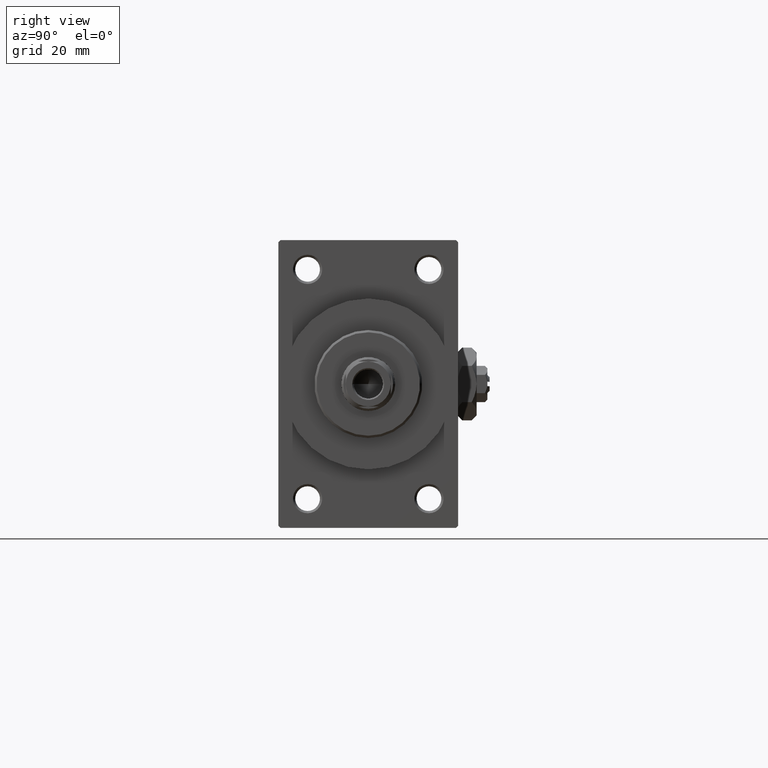
[diagram: clean part render]
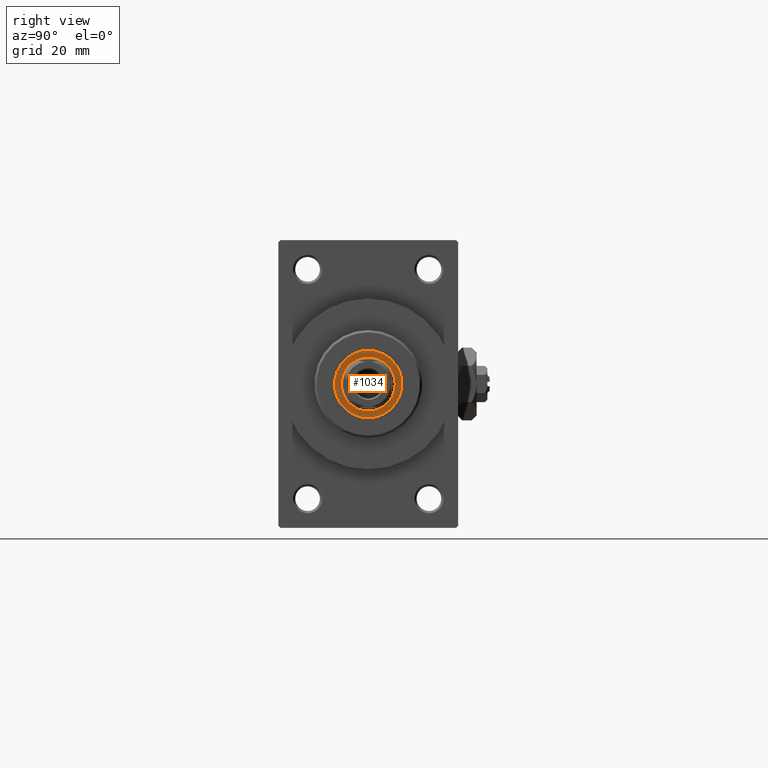
[diagram: same view with one face highlighted and labeled with its STEP entity id]
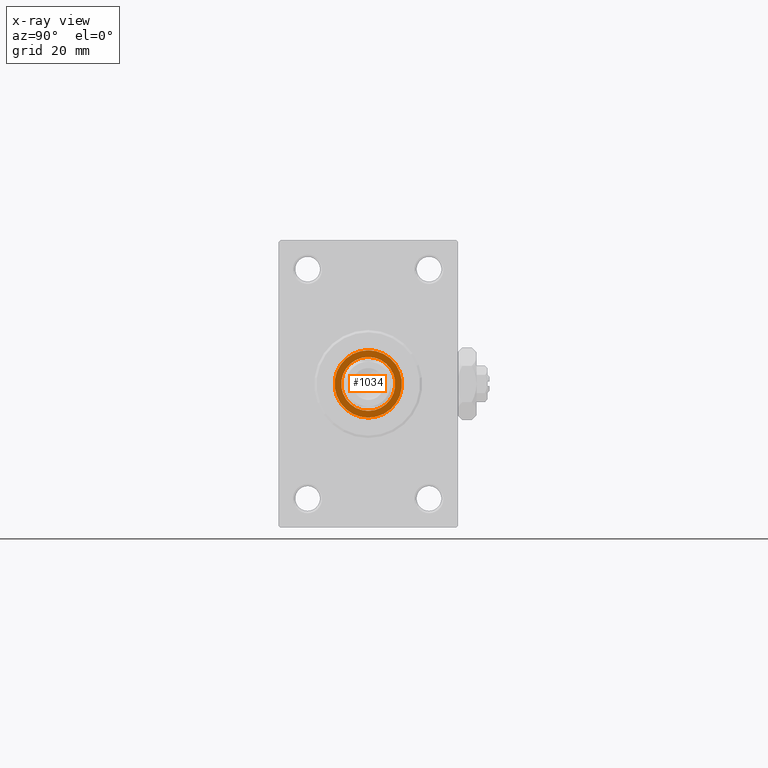
[diagram: x-ray of the same camera — body ghosted, the highlighted face saturated]
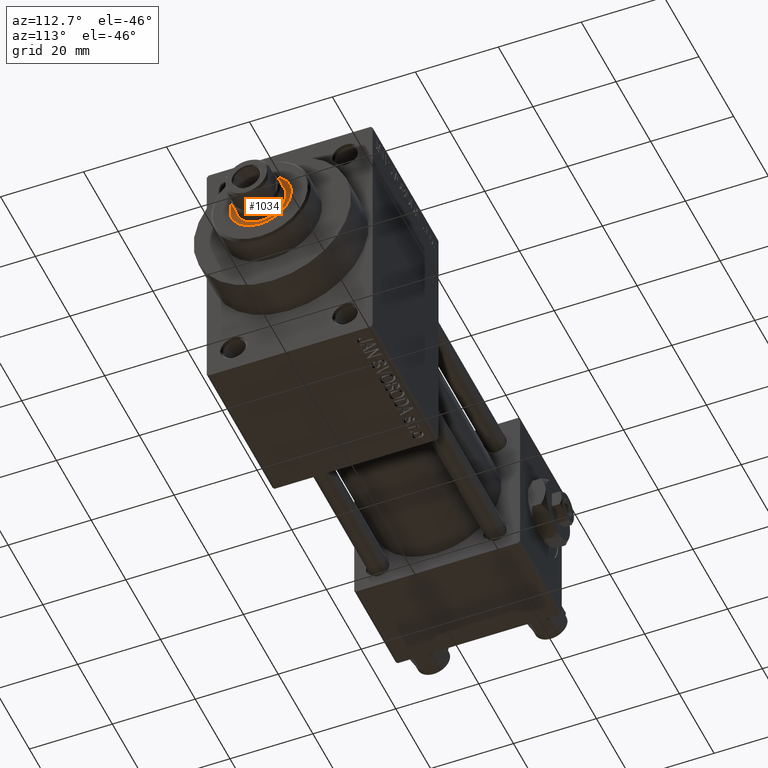
[diagram: same view with one face highlighted and labeled with its STEP entity id]
A machine part, right view. The second image highlights one B-rep face of the part: STEP entity #1034.
The next image is the same camera in x-ray: the body ghosted, the highlighted face saturated — about 0% of this face is hidden behind the body in this view.
A second angle (auxiliary view) of the same face is appended — the face is thin or edge-on in the first view.
In plain terms, the highlighted planar face has unit normal (1, -0, -0).
Its self-contained STEP definition (entity closure, byte-faithful):
#811 = AXIS2_PLACEMENT_3D ( 'NONE', #42997, #5244, #5985 ) ;
#988 = EDGE_LOOP ( 'NONE', ( #31815, #18869 ) ) ;
#1034 = ADVANCED_FACE ( 'NONE', ( #34690, #14973 ), #3861, .T. ) ;
#1214 = CIRCLE ( 'NONE', #47736, 6.000000000000000888 ) ;
#2692 = CIRCLE ( 'NONE', #5048, 7.500000000000000888 ) ;
#2973 = AXIS2_PLACEMENT_3D ( 'NONE', #34643, #38351, #46000 ) ;
#3861 = PLANE ( 'NONE',  #48552 ) ;
#4606 = EDGE_CURVE ( 'NONE', #20497, #8974, #21889, .T. ) ;
#5048 = AXIS2_PLACEMENT_3D ( 'NONE', #42451, #12588, #19990 ) ;
#5244 = DIRECTION ( 'NONE',  ( -0.000000000000000000, -0.000000000000000000, -1.000000000000000000 ) ) ;
#5460 = CARTESIAN_POINT ( 'NONE',  ( -6.000000000000000888, 7.347880794884120722E-16, 49.75999999999999801 ) ) ;
#5985 = DIRECTION ( 'NONE',  ( 1.000000000000000000, 0.000000000000000000, 0.000000000000000000 ) ) ;
#8974 = VERTEX_POINT ( 'NONE', #19914 ) ;
#9986 = ORIENTED_EDGE ( 'NONE', *, *, #22442, .T. ) ;
#11271 = DIRECTION ( 'NONE',  ( 0.000000000000000000, 0.000000000000000000, 1.000000000000000000 ) ) ;
#12588 = DIRECTION ( 'NONE',  ( 0.000000000000000000, 0.000000000000000000, 1.000000000000000000 ) ) ;
#13389 = EDGE_CURVE ( 'NONE', #27959, #24842, #39439, .T. ) ;
#14973 = FACE_BOUND ( 'NONE', #15734, .T. ) ;
#15734 = EDGE_LOOP ( 'NONE', ( #9986, #17633 ) ) ;
#17633 = ORIENTED_EDGE ( 'NONE', *, *, #13389, .T. ) ;
#18869 = ORIENTED_EDGE ( 'NONE', *, *, #21376, .T. ) ;
#19088 = CARTESIAN_POINT ( 'NONE',  ( 0.000000000000000000, 0.000000000000000000, 49.75999999999999801 ) ) ;
#19914 = CARTESIAN_POINT ( 'NONE',  ( -7.500000000000000888, 9.184850993605149917E-16, 49.75999999999999801 ) ) ;
#19990 = DIRECTION ( 'NONE',  ( 1.000000000000000000, 0.000000000000000000, 0.000000000000000000 ) ) ;
#20497 = VERTEX_POINT ( 'NONE', #32303 ) ;
#21376 = EDGE_CURVE ( 'NONE', #8974, #20497, #2692, .T. ) ;
#21889 = CIRCLE ( 'NONE', #2973, 7.500000000000000888 ) ;
#22442 = EDGE_CURVE ( 'NONE', #24842, #27959, #1214, .T. ) ;
#24842 = VERTEX_POINT ( 'NONE', #41080 ) ;
#26327 = DIRECTION ( 'NONE',  ( 1.000000000000000000, 0.000000000000000000, -0.000000000000000000 ) ) ;
#27959 = VERTEX_POINT ( 'NONE', #5460 ) ;
#31815 = ORIENTED_EDGE ( 'NONE', *, *, #4606, .T. ) ;
#32303 = CARTESIAN_POINT ( 'NONE',  ( 7.500000000000000888, 0.000000000000000000, 49.75999999999999801 ) ) ;
#33644 = DIRECTION ( 'NONE',  ( 1.000000000000000000, 0.000000000000000000, 0.000000000000000000 ) ) ;
#34643 = CARTESIAN_POINT ( 'NONE',  ( 0.000000000000000000, 0.000000000000000000, 49.75999999999999801 ) ) ;
#34690 = FACE_OUTER_BOUND ( 'NONE', #988, .T. ) ;
#38351 = DIRECTION ( 'NONE',  ( 0.000000000000000000, 0.000000000000000000, 1.000000000000000000 ) ) ;
#39439 = CIRCLE ( 'NONE', #811, 6.000000000000000888 ) ;
#41080 = CARTESIAN_POINT ( 'NONE',  ( 6.000000000000000888, 0.000000000000000000, 49.75999999999999801 ) ) ;
#42451 = CARTESIAN_POINT ( 'NONE',  ( 0.000000000000000000, 0.000000000000000000, 49.75999999999999801 ) ) ;
#42997 = CARTESIAN_POINT ( 'NONE',  ( 0.000000000000000000, 0.000000000000000000, 49.75999999999999801 ) ) ;
#45073 = CARTESIAN_POINT ( 'NONE',  ( 0.000000000000000000, 0.000000000000000000, 49.75999999999999801 ) ) ;
#46000 = DIRECTION ( 'NONE',  ( 1.000000000000000000, 0.000000000000000000, 0.000000000000000000 ) ) ;
#47736 = AXIS2_PLACEMENT_3D ( 'NONE', #19088, #48476, #33644 ) ;
#48476 = DIRECTION ( 'NONE',  ( -0.000000000000000000, -0.000000000000000000, -1.000000000000000000 ) ) ;
#48552 = AXIS2_PLACEMENT_3D ( 'NONE', #45073, #11271, #26327 ) ;